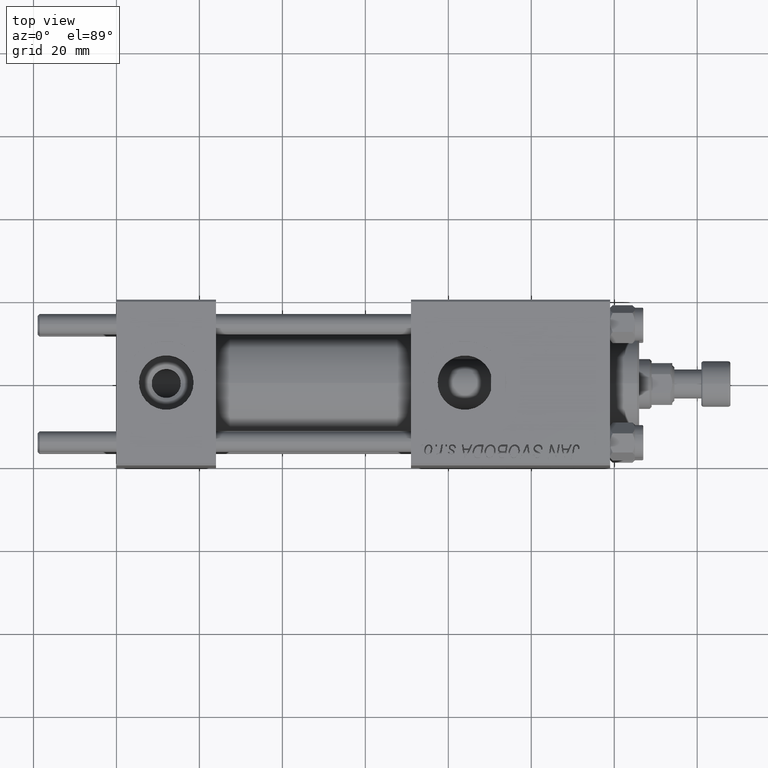
[diagram: clean part render]
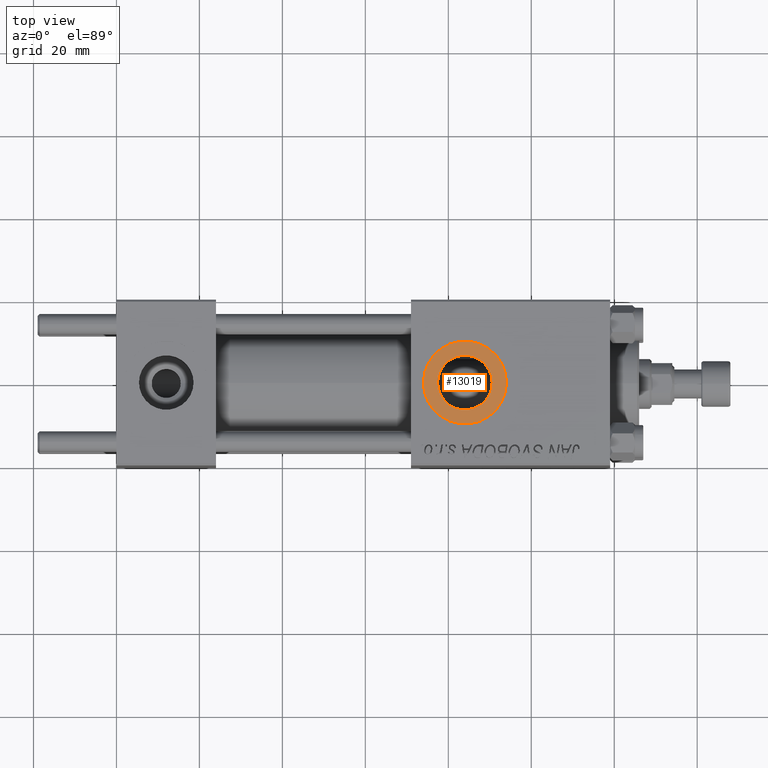
[diagram: same view with one face highlighted and labeled with its STEP entity id]
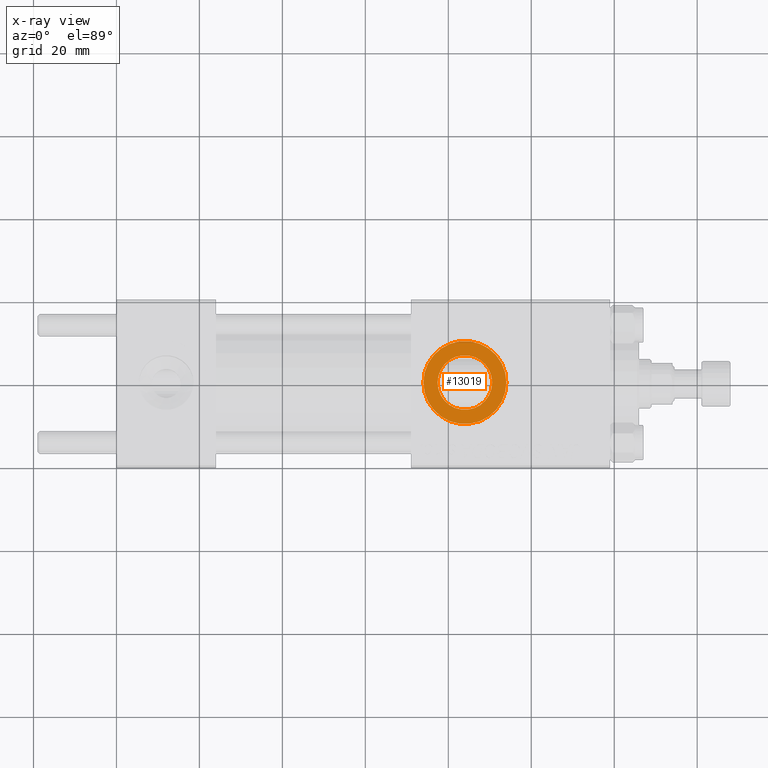
[diagram: x-ray of the same camera — body ghosted, the highlighted face saturated]
A machine part, top view. The second image highlights one B-rep face of the part: STEP entity #13019.
The next image is the same camera in x-ray: the body ghosted, the highlighted face saturated — about 0% of this face is hidden behind the body in this view.
In plain terms, the highlighted planar face has unit normal (0, 0, 1).
Its self-contained STEP definition (entity closure, byte-faithful):
#889 = DIRECTION ( 'NONE',  ( 1.000000000000000000, 0.000000000000000000, 0.000000000000000000 ) ) ;
#944 = CARTESIAN_POINT ( 'NONE',  ( 84.00000000000000000, -1.734723475976806897E-15, 19.80000000000000071 ) ) ;
#3767 = VERTEX_POINT ( 'NONE', #21481 ) ;
#4963 = CARTESIAN_POINT ( 'NONE',  ( 90.58000000000154728, -9.289058821376599092E-16, 19.80000000000000071 ) ) ;
#5712 = VERTEX_POINT ( 'NONE', #4963 ) ;
#8133 = AXIS2_PLACEMENT_3D ( 'NONE', #22635, #38172, #13975 ) ;
#8840 = CARTESIAN_POINT ( 'NONE',  ( 94.00000000000154898, -1.734723475976806897E-15, 19.80000000000000071 ) ) ;
#9121 = FACE_OUTER_BOUND ( 'NONE', #38947, .T. ) ;
#10283 = DIRECTION ( 'NONE',  ( 0.000000000000000000, 0.000000000000000000, 1.000000000000000000 ) ) ;
#10347 = VERTEX_POINT ( 'NONE', #49473 ) ;
#12016 = CARTESIAN_POINT ( 'NONE',  ( 84.00000000000000000, -1.734723475976806897E-15, 19.80000000000000071 ) ) ;
#12345 = CIRCLE ( 'NONE', #15620, 6.580000000001542837 ) ;
#13019 = ADVANCED_FACE ( 'NONE', ( #32292, #9121 ), #24170, .T. ) ;
#13854 = AXIS2_PLACEMENT_3D ( 'NONE', #944, #24670, #28967 ) ;
#13975 = DIRECTION ( 'NONE',  ( 1.000000000000000000, 0.000000000000000000, 0.000000000000000000 ) ) ;
#14360 = AXIS2_PLACEMENT_3D ( 'NONE', #12016, #15825, #31117 ) ;
#14429 = CIRCLE ( 'NONE', #35593, 10.00000000000154898 ) ;
#15620 = AXIS2_PLACEMENT_3D ( 'NONE', #16466, #24858, #889 ) ;
#15823 = EDGE_CURVE ( 'NONE', #5712, #10347, #12345, .T. ) ;
#15825 = DIRECTION ( 'NONE',  ( 0.000000000000000000, 0.000000000000000000, 1.000000000000000000 ) ) ;
#16466 = CARTESIAN_POINT ( 'NONE',  ( 84.00000000000000000, -1.734723475976806897E-15, 19.80000000000000071 ) ) ;
#16779 = CIRCLE ( 'NONE', #14360, 10.00000000000154898 ) ;
#17212 = ORIENTED_EDGE ( 'NONE', *, *, #30547, .T. ) ;
#18197 = DIRECTION ( 'NONE',  ( 1.000000000000000000, 0.000000000000000000, 0.000000000000000000 ) ) ;
#18614 = ORIENTED_EDGE ( 'NONE', *, *, #42302, .T. ) ;
#19811 = ORIENTED_EDGE ( 'NONE', *, *, #15823, .T. ) ;
#21481 = CARTESIAN_POINT ( 'NONE',  ( 73.99999999999845102, -5.100766768292640183E-16, 19.80000000000000071 ) ) ;
#22601 = ORIENTED_EDGE ( 'NONE', *, *, #32979, .T. ) ;
#22635 = CARTESIAN_POINT ( 'NONE',  ( 84.00000000000000000, -1.734723475976806897E-15, 19.80000000000000071 ) ) ;
#24170 = PLANE ( 'NONE',  #13854 ) ;
#24670 = DIRECTION ( 'NONE',  ( 0.000000000000000000, 0.000000000000000000, 1.000000000000000000 ) ) ;
#24858 = DIRECTION ( 'NONE',  ( -0.000000000000000000, -0.000000000000000000, -1.000000000000000000 ) ) ;
#28967 = DIRECTION ( 'NONE',  ( 1.000000000000000000, 0.000000000000000000, -0.000000000000000000 ) ) ;
#30095 = CIRCLE ( 'NONE', #8133, 6.580000000001542837 ) ;
#30547 = EDGE_CURVE ( 'NONE', #43218, #3767, #16779, .T. ) ;
#31117 = DIRECTION ( 'NONE',  ( 1.000000000000000000, 0.000000000000000000, 0.000000000000000000 ) ) ;
#32292 = FACE_BOUND ( 'NONE', #48327, .T. ) ;
#32979 = EDGE_CURVE ( 'NONE', #3767, #43218, #14429, .T. ) ;
#35593 = AXIS2_PLACEMENT_3D ( 'NONE', #41861, #10283, #18197 ) ;
#38172 = DIRECTION ( 'NONE',  ( -0.000000000000000000, -0.000000000000000000, -1.000000000000000000 ) ) ;
#38947 = EDGE_LOOP ( 'NONE', ( #17212, #22601 ) ) ;
#41861 = CARTESIAN_POINT ( 'NONE',  ( 84.00000000000000000, -1.734723475976806897E-15, 19.80000000000000071 ) ) ;
#42302 = EDGE_CURVE ( 'NONE', #10347, #5712, #30095, .T. ) ;
#43218 = VERTEX_POINT ( 'NONE', #8840 ) ;
#48327 = EDGE_LOOP ( 'NONE', ( #18614, #19811 ) ) ;
#49473 = CARTESIAN_POINT ( 'NONE',  ( 77.41999999999846693, -1.734723475976806897E-15, 19.80000000000000071 ) ) ;